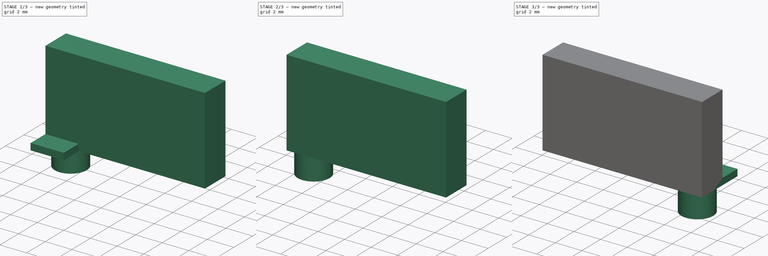
[diagram: build sequence overview — one tinted view per stage of 3, left to right]
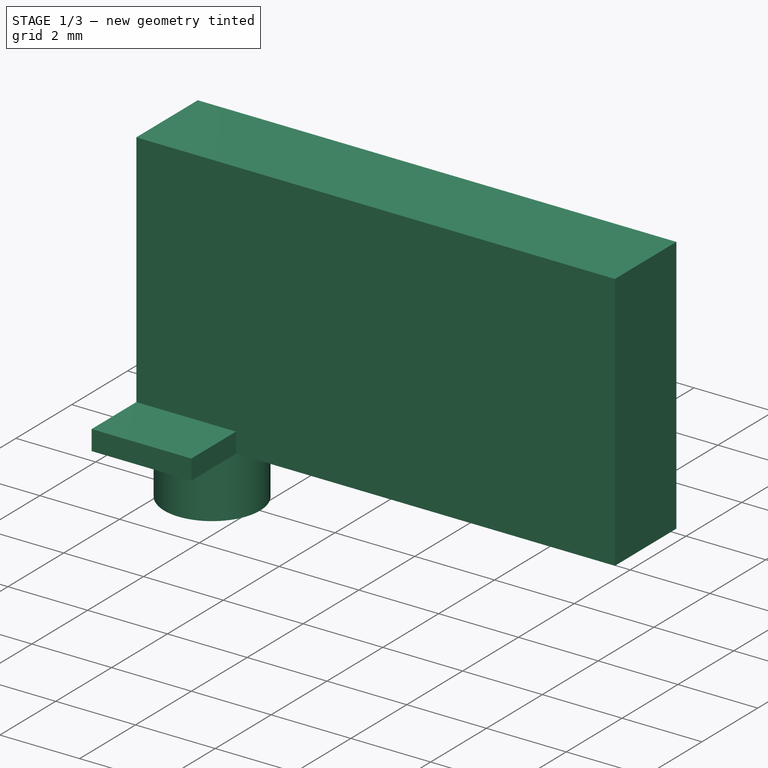
[diagram: stage 1 of 3 — iso view after this stage's code; geometry added in this stage tinted green]
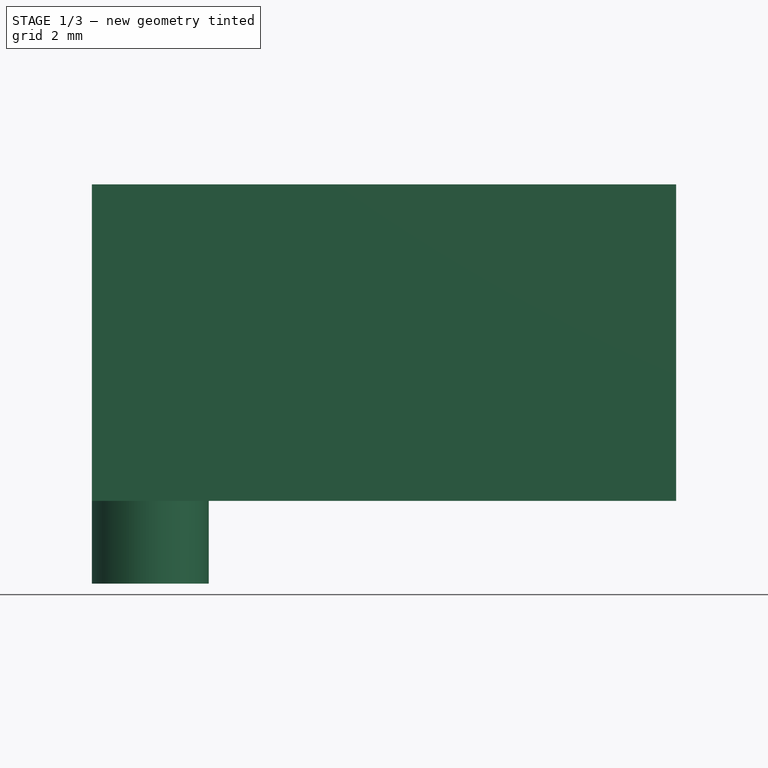
[diagram: stage 1 of 3 — front view after this stage's code; geometry added in this stage tinted green]
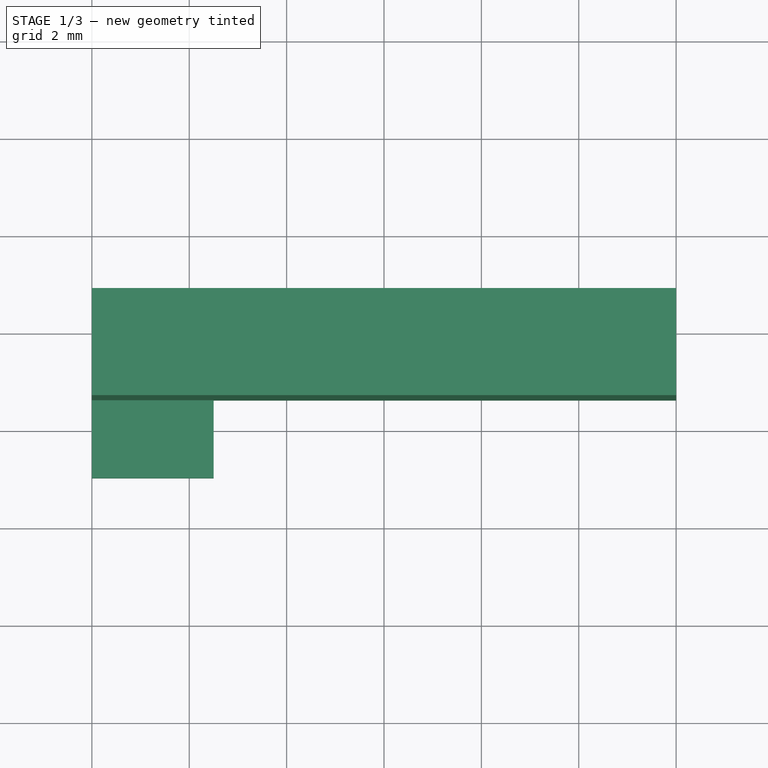
[diagram: stage 1 of 3 — top view after this stage's code; geometry added in this stage tinted green]
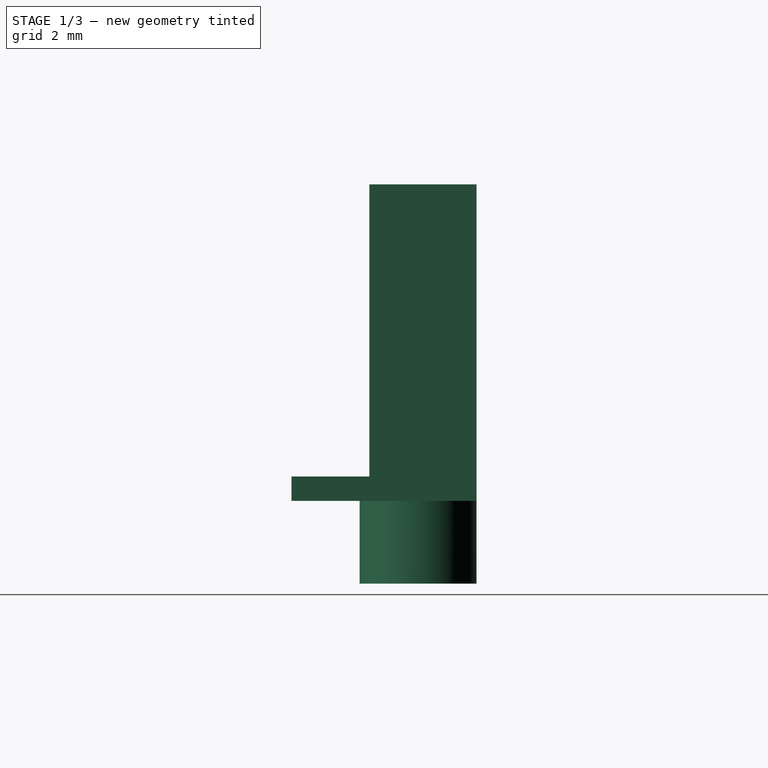
[diagram: stage 1 of 3 — right view after this stage's code; geometry added in this stage tinted green]
FCSTD DOCUMENT  (FreeCAD 0.19R24291 (Git))
Label: Light_Pipe_Mount_2
License: All rights reserved
LicenseURL: http://en.wikipedia.org/wiki/All_rights_reserved
objects: Part::Feature×14, Sketcher::SketchObject×3, PartDesign::Pad×3, Part::Compound×2, PartDesign::Body×2, Part::Mirroring×2, Spreadsheet::Sheet×1, PartDesign::Plane×1, PartDesign::FeatureBase×1
note: 31 computed .brp shape members not serialized (recipe doc carries the construction recipe); baked Part::Feature solids carry a one-line shape summary decoded from their .brp

FEATURE [PartDesign::Pad] Pad
  Direction = (1,1,1)
  Length = 0.5
  Length2 = 100
  Profile = -> Sketch
  Type = 0
FEATURE [Sketcher::SketchObject] Sketch001  label="Mount Post - Sketch001"
  ExternalGeometry = -> [Sketch]
  FullyConstrained = true
  MapMode = 5
  Support = -> [XY_Plane]
  sketch-geometry (1):
    g0: Circle CenterX=-4.8 CenterY=1.6 CenterZ=0 NormalX=0 NormalY=0 NormalZ=1 AngleXU=0 Radius=1.2
  constraints (3):
    c: Tangent(g0,g-4)
    c: Tangent(g0,g-3)
    c: Diameter(g0) = 2.4
FEATURE [PartDesign::Pad] Pad001
  BaseFeature = -> Pad
  Direction = (1,1,1)
  Length = 1.7
  Length2 = 100
  Profile = -> Sketch001
  Reversed = true
  Type = 0
FEATURE [PartDesign::Plane] DatumPlane
  Length = 60
  MapMode = 5
  Placement = pos=(0,0,0.5) rot=(0,0,1;0rad)
  ResizeMode = 0
  Support = -> [Pad001]
  Width = 60
FEATURE [Sketcher::SketchObject] Sketch002  label="Side - Sketch002"
  ExternalGeometry = -> [Sketch]
  FullyConstrained = true
  MapMode = 5
  Placement = pos=(0,0,0.5) rot=(0,0,1;0rad)
  Support = -> [DatumPlane]
  sketch-geometry (4):
    g0: LineSegment StartX=-6 StartY=2.8 StartZ=0 EndX=6 EndY=2.8 EndZ=0
    g1: LineSegment StartX=6 StartY=2.8 StartZ=0 EndX=6 EndY=0.6 EndZ=0
    g2: LineSegment StartX=6 StartY=0.6 StartZ=0 EndX=-6 EndY=0.6 EndZ=0
    g3: LineSegment StartX=-6 StartY=0.6 StartZ=0 EndX=-6 EndY=2.8 EndZ=0
  constraints (10):
    c: Coincident(g0,g1)
    c: Coincident(g1,g2)
    c: Coincident(g2,g3)
    c: Coincident(g3,g0)
    c: Horizontal(g0)
    c: Horizontal(g2)
    c: Vertical(g1)
    c: Vertical(g3)
    c: Coincident(g0,g-4)
    c: Coincident(g1,g-6)
FEATURE [PartDesign::Pad] Pad002
  BaseFeature = -> Pad001
  Direction = (1,1,1)
  Length = 6
  Length2 = 100
  Profile = -> Sketch002
  Refine = true
  Type = 0
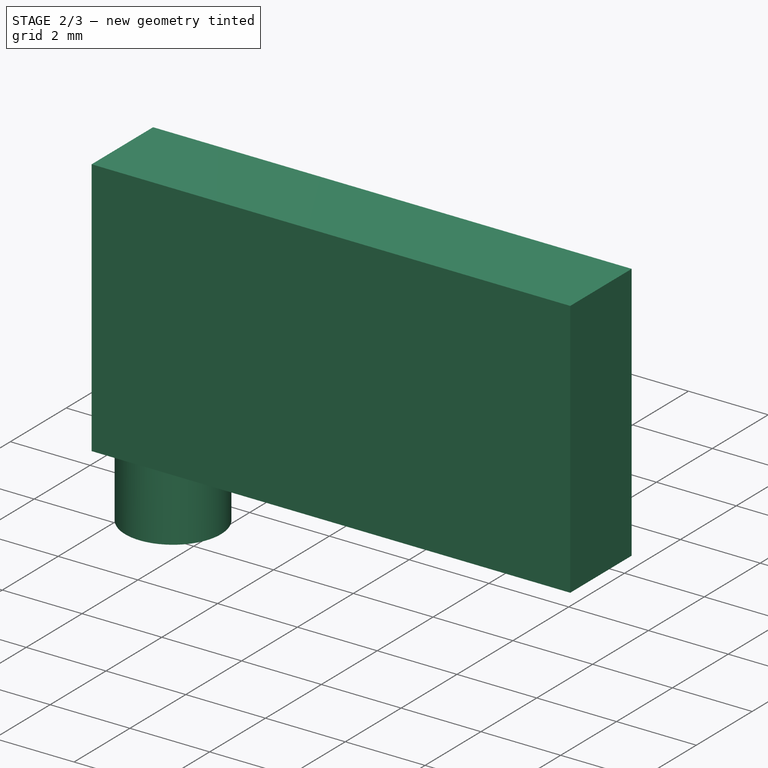
[diagram: stage 2 of 3 — iso view after this stage's code; geometry added in this stage tinted green]
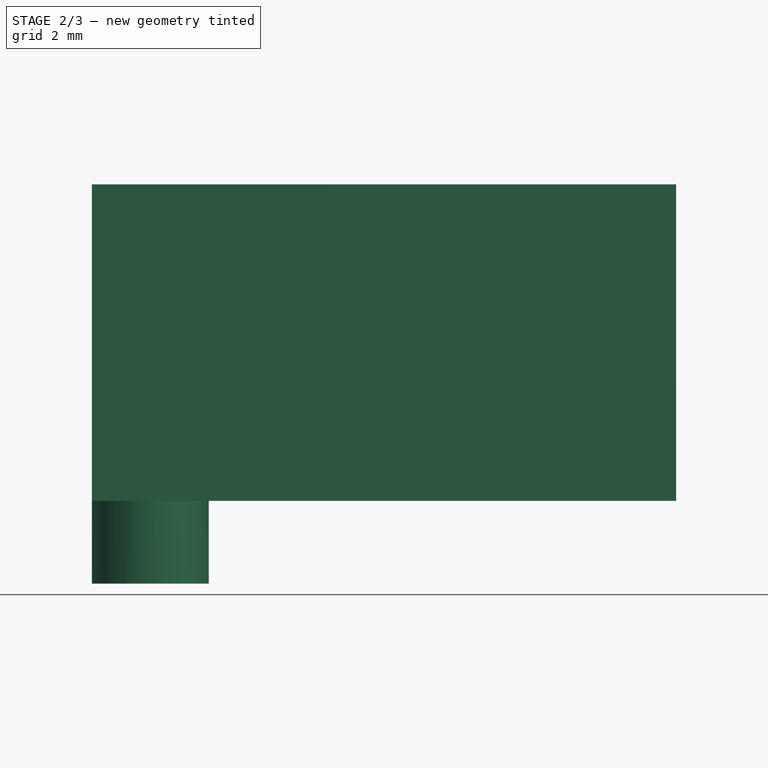
[diagram: stage 2 of 3 — front view after this stage's code; geometry added in this stage tinted green]
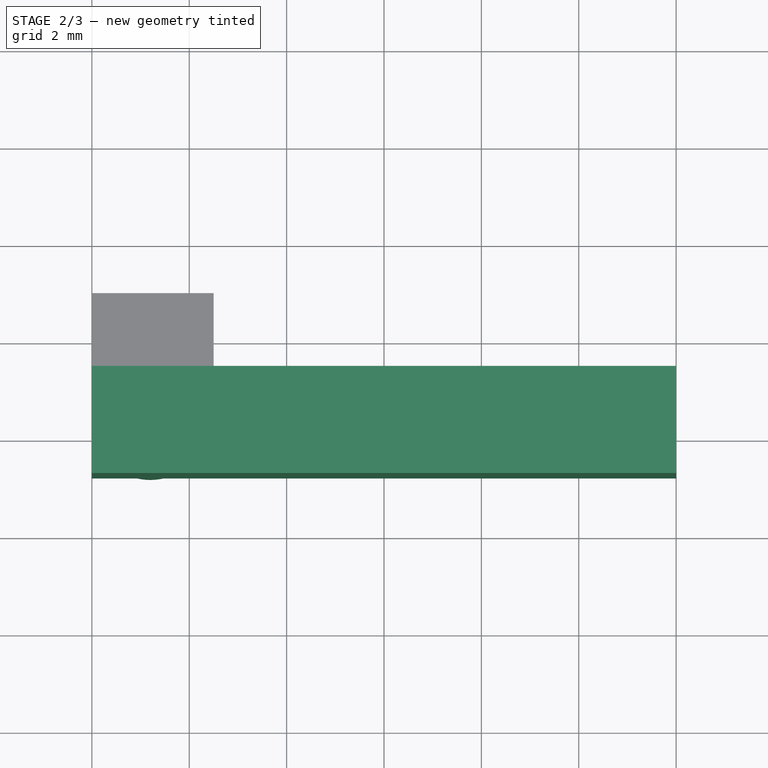
[diagram: stage 2 of 3 — top view after this stage's code; geometry added in this stage tinted green]
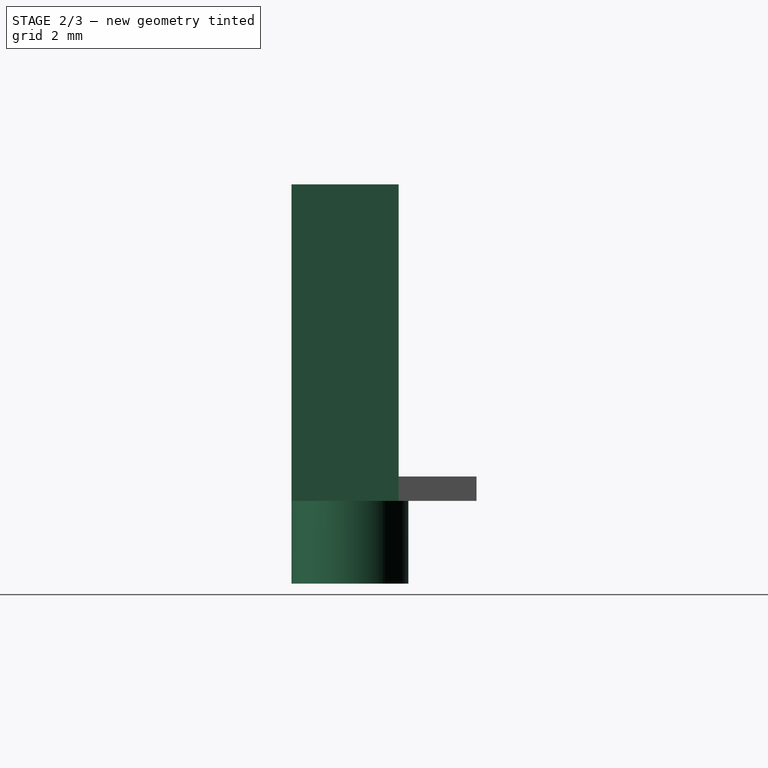
[diagram: stage 2 of 3 — right view after this stage's code; geometry added in this stage tinted green]
FEATURE [PartDesign::Body] Body
  Group = -> [Sketch,Pad,Sketch001,Pad001,DatumPlane,Sketch002,Pad002]
  Origin = -> Origin
  Tip = -> Pad002
FEATURE [PartDesign::FeatureBase] Clone
  BaseFeature = -> Body
FEATURE [PartDesign::Body] Body001  label="Body003"
  BaseFeature = -> Body
  Group = -> [Clone]
  Origin = -> Origin001
  Tip = -> Clone
FEATURE [Part::Mirroring] Part__Mirroring  label="Clone (Mirror #1)"
  Base = (0,0,0)
  Normal = (0,1,0)
  Source = -> Clone
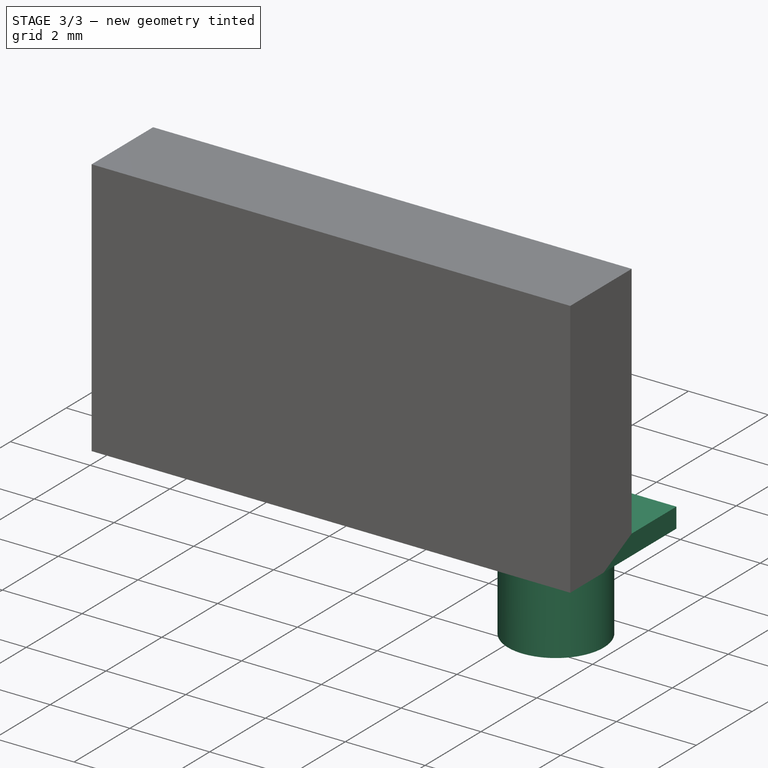
[diagram: stage 3 of 3 — iso view after this stage's code; geometry added in this stage tinted green]
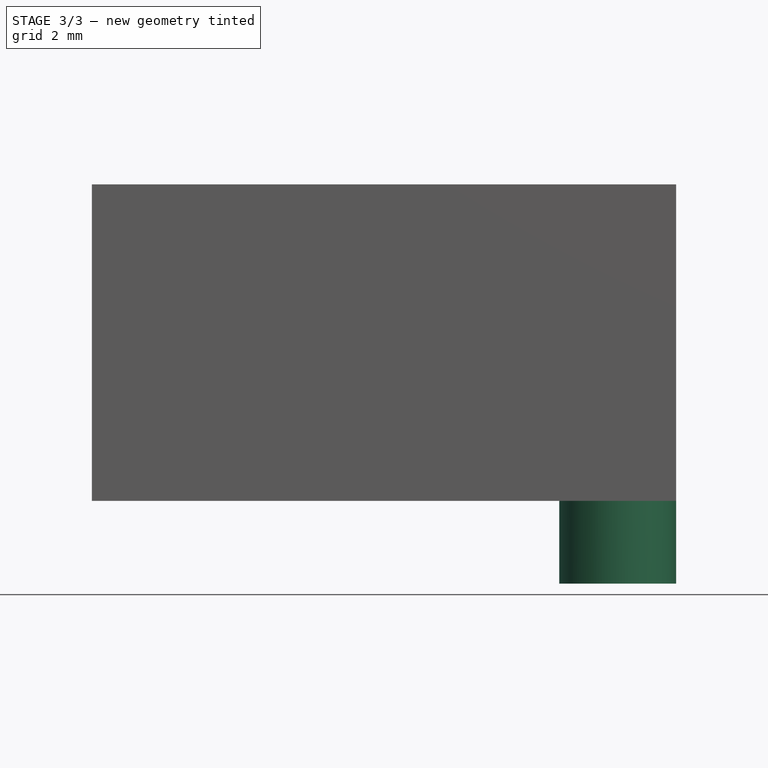
[diagram: stage 3 of 3 — front view after this stage's code; geometry added in this stage tinted green]
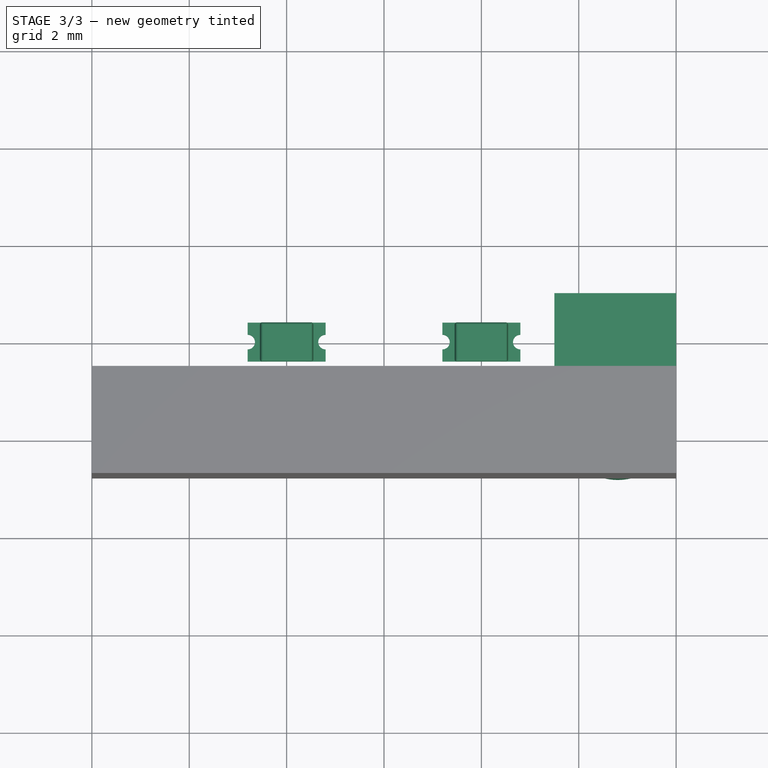
[diagram: stage 3 of 3 — top view after this stage's code; geometry added in this stage tinted green]
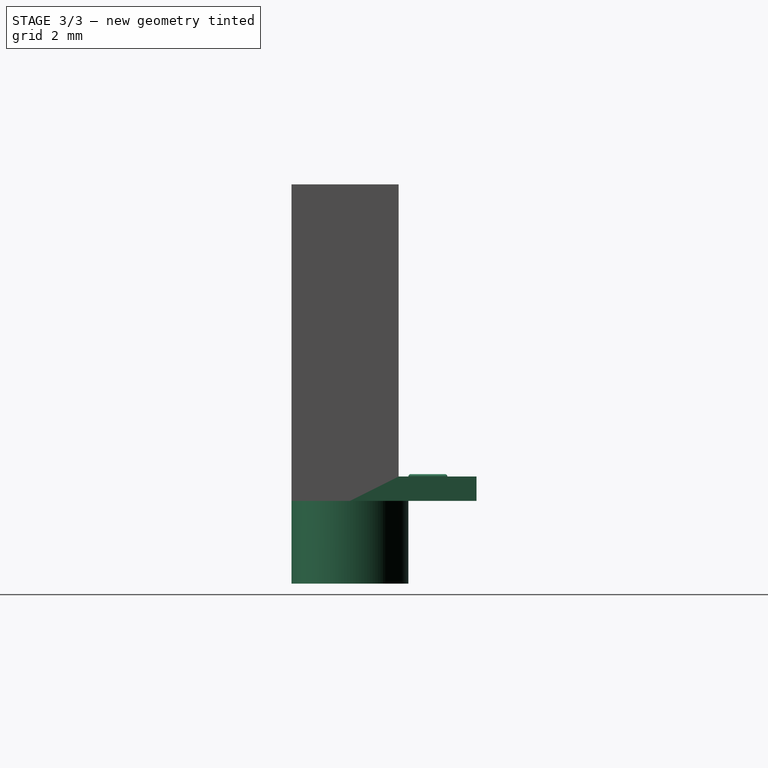
[diagram: stage 3 of 3 — right view after this stage's code; geometry added in this stage tinted green]
FEATURE [Sketcher::SketchObject] Sketch  label="Base - Sketch"
  FullyConstrained = true
  MapMode = 5
  Support = -> [XY_Plane]
  sketch-geometry (6):
    g0: LineSegment StartX=-3.5 StartY=-1 StartZ=0 EndX=-6 EndY=-1 EndZ=0
    g1: LineSegment StartX=-6 StartY=-1 StartZ=0 EndX=-6 EndY=2.8 EndZ=0
    g2: LineSegment StartX=-6 StartY=2.8 StartZ=0 EndX=6 EndY=2.8 EndZ=0
    g3: LineSegment StartX=-3.5 StartY=-1 StartZ=0 EndX=-3.5 EndY=0.6 EndZ=0
    g4: LineSegment StartX=-3.5 StartY=0.6 StartZ=0 EndX=6 EndY=0.6 EndZ=0
    g5: LineSegment StartX=6 StartY=2.8 StartZ=0 EndX=6 EndY=0.6 EndZ=0
  constraints (18):
    c: Horizontal(g0)
    c: Coincident(g1,g0)
    c: Vertical(g1)
    c: Coincident(g2,g1)
    c: Horizontal(g2)
    c: Vertical(g3)
    c: Coincident(g4,g3)
    c: Horizontal(g4)
    c: Coincident(g5,g2)
    c: Coincident(g5,g4)
    c: Vertical(g5)
    c: Distance(g5) = 2.2
    c: Coincident(g0,g3)
    c: DistanceX(g4,g4) = 9.5
    c: Distance(g-1,g4) = 0.6
    c: DistanceY(g3,g3) = 1.6
    c: Distance(g-1,g3) = 3.5
    c: DistanceX(g2,g2) = 12
FEATURE [Part::Feature] Part__Feature  label="Light"
  shape: bbox 0.3 x 0.3 x 0.3 mm, 1 faces (baked)
FEATURE [Part::Feature] Part__Feature001  label="Body001"
  shape: bbox 1.1 x 0.8 x 0.37 mm, 16 faces (baked)
FEATURE [Part::Feature] Part__Feature002  label="Anode Bottom"
  shape: bbox 0.6 x 0.7996 x 0.02 mm, 12 faces (baked)
FEATURE [Part::Feature] Part__Feature003  label="Cathode Bottom"
  shape: bbox 0.4 x 0.7996 x 0.02 mm, 8 faces (baked)
FEATURE [Part::Feature] Part__Feature004  label="Anode"
  shape: bbox 0.4 x 0.8 x 0.02 mm, 8 faces (baked)
FEATURE [Part::Feature] Part__Feature005  label="Cathode"
  shape: bbox 0.4 x 0.8 x 0.02 mm, 8 faces (baked)
FEATURE [Part::Feature] Part__Feature006  label="Base"
  shape: bbox 1.6 x 0.8 x 0.14 mm, 10 faces (baked)
FEATURE [Part::Compound] Compound  label="LED1"
  Links = -> [Part__Feature,Part__Feature001,Part__Feature002,Part__Feature003,Part__Feature004,Part__Feature005,Part__Feature006]
  Placement = pos=(2,0,0) rot=(0,0,1;0rad)
FEATURE [Spreadsheet::Sheet] Spreadsheet
FEATURE [Part::Feature] Part__Feature007  label="Light001"
  shape: bbox 0.3 x 0.3 x 0.3 mm, 1 faces (baked)
FEATURE [Part::Feature] Part__Feature008  label="Body002"
  shape: bbox 1.1 x 0.8 x 0.37 mm, 16 faces (baked)
FEATURE [Part::Feature] Part__Feature009  label="Anode Bottom001"
  shape: bbox 0.6 x 0.7996 x 0.02 mm, 12 faces (baked)
FEATURE [Part::Feature] Part__Feature010  label="Cathode Bottom001"
  shape: bbox 0.4 x 0.7996 x 0.02 mm, 8 faces (baked)
FEATURE [Part::Feature] Part__Feature011  label="Anode001"
  shape: bbox 0.4 x 0.8 x 0.02 mm, 8 faces (baked)
FEATURE [Part::Feature] Part__Feature012  label="Cathode001"
  shape: bbox 0.4 x 0.8 x 0.02 mm, 8 faces (baked)
FEATURE [Part::Feature] Part__Feature013  label="Base001"
  shape: bbox 1.6 x 0.8 x 0.14 mm, 10 faces (baked)
FEATURE [Part::Compound] Compound001  label="LED2"
  Links = -> [Part__Feature007,Part__Feature008,Part__Feature009,Part__Feature010,Part__Feature011,Part__Feature012,Part__Feature013]
  Placement = pos=(-2,0,0) rot=(0,0,1;0rad)
FEATURE [Part::Mirroring] Part__Mirroring001  label="Clone (Mirror #2)"
  Base = (0,0,0)
  Normal = (1,0,0)
  Source = -> Part__Mirroring
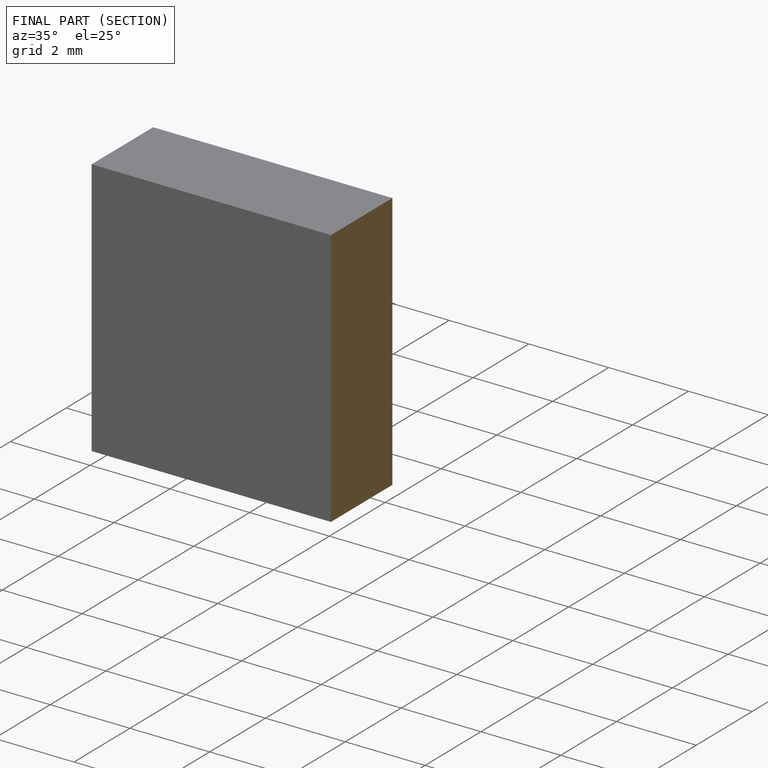
[diagram: finished part — half-section view (interior)]
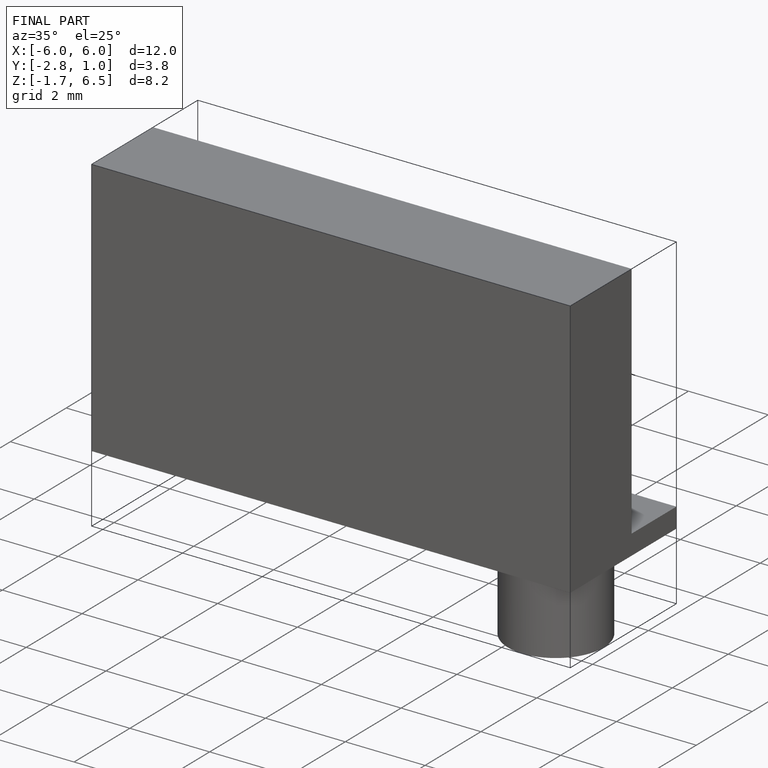
[diagram: finished part — iso view with bounding-box wireframe]
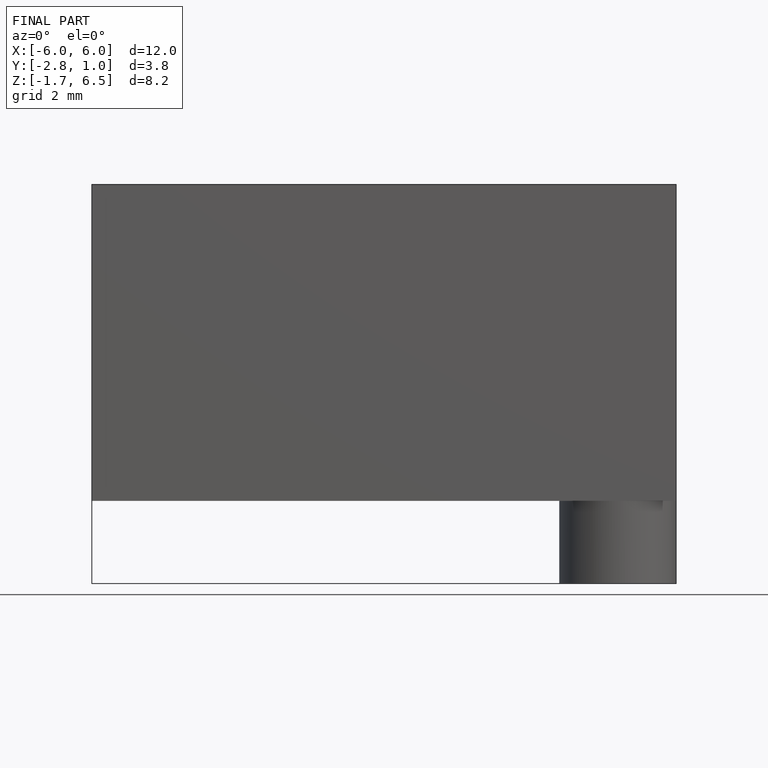
[diagram: finished part — front view with bounding-box wireframe]
